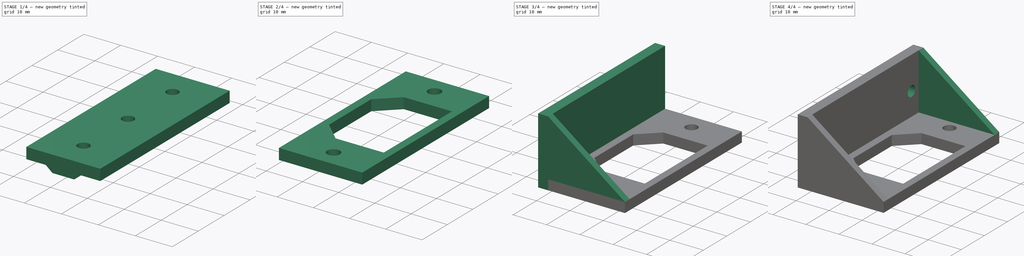
[diagram: build sequence overview — one tinted view per stage of 4, left to right]
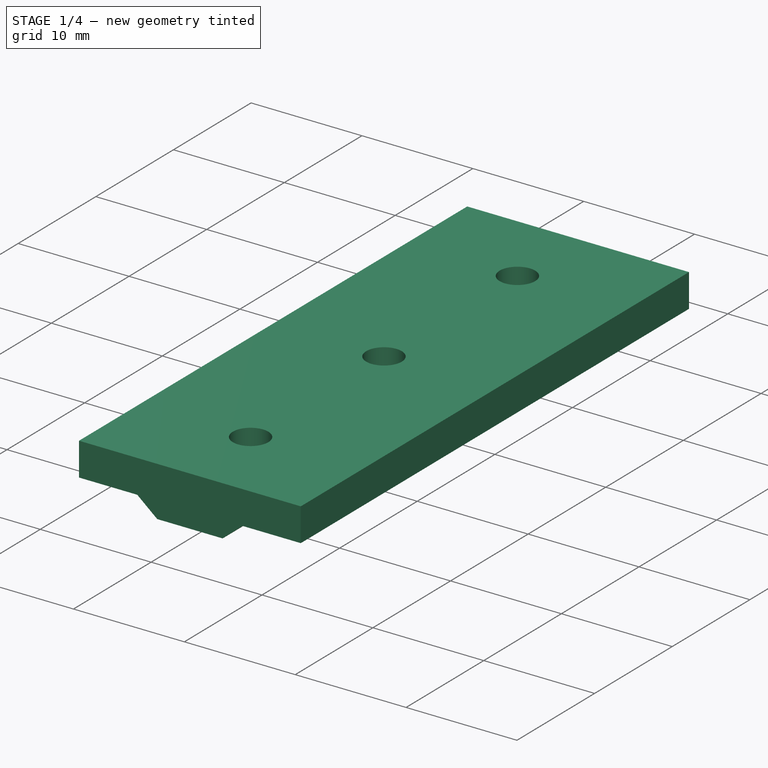
[diagram: stage 1 of 4 — iso view after this stage's code; geometry added in this stage tinted green]
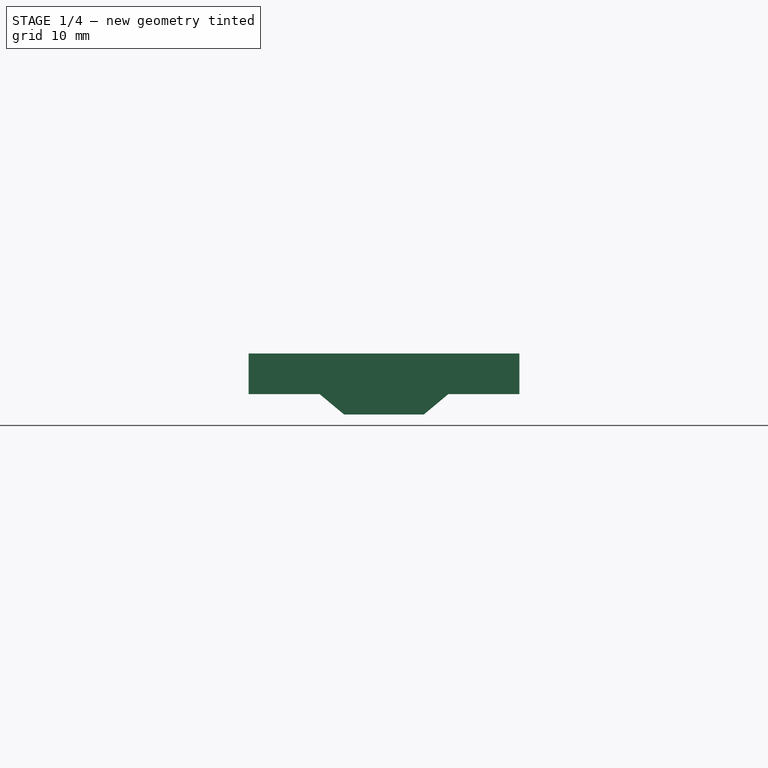
[diagram: stage 1 of 4 — front view after this stage's code; geometry added in this stage tinted green]
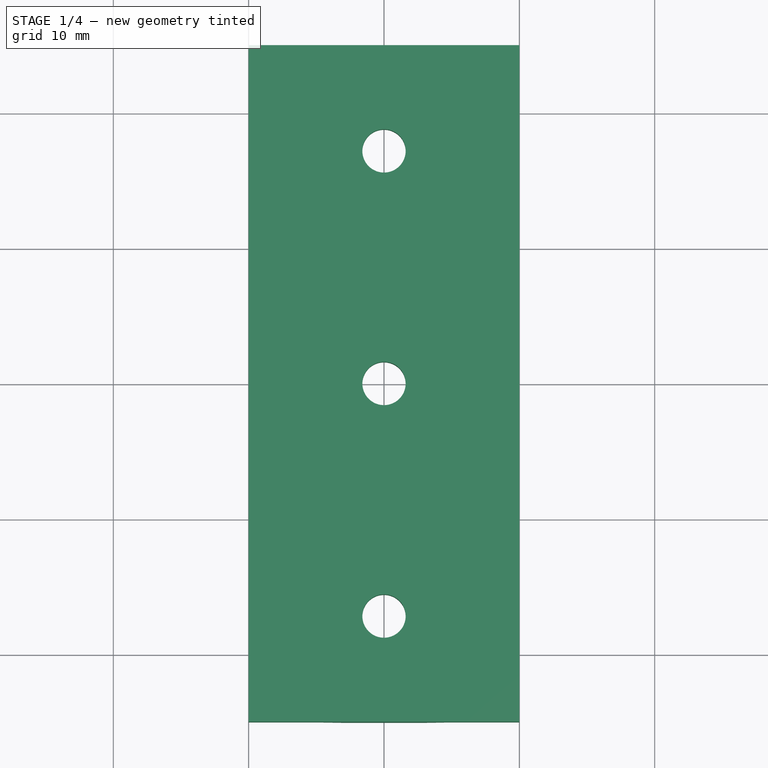
[diagram: stage 1 of 4 — top view after this stage's code; geometry added in this stage tinted green]
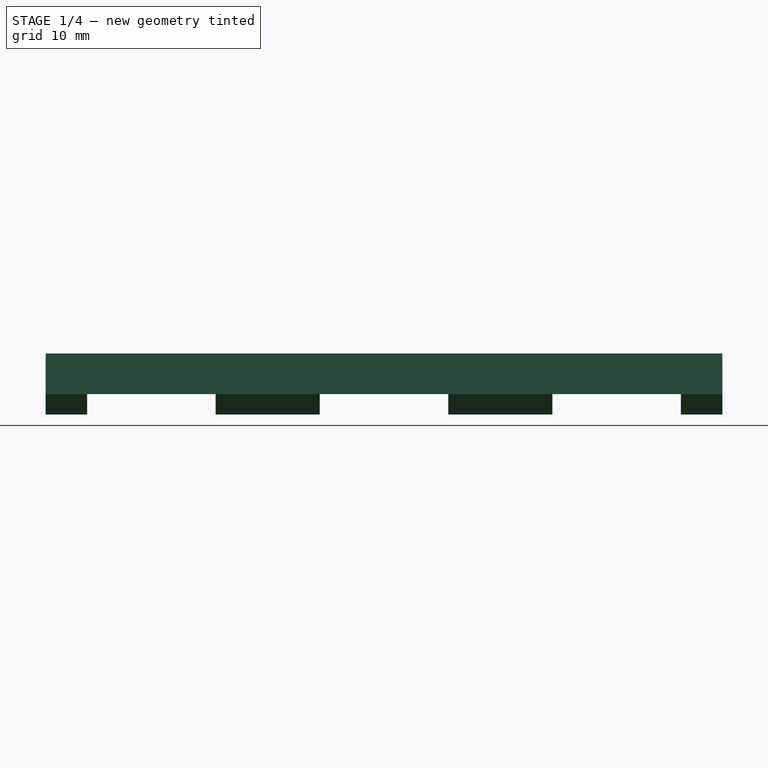
[diagram: stage 1 of 4 — right view after this stage's code; geometry added in this stage tinted green]
FCSTD DOCUMENT  (FreeCAD 0.21R33771 (Git))
Label: suporte-tomada
License: All rights reserved
LicenseURL: https://en.wikipedia.org/wiki/All_rights_reserved
objects: Sketcher::SketchObject×10, PartDesign::Pad×8, PartDesign::Pocket×6, PartDesign::Body×1
note: 39 computed .brp shape members not serialized (recipe doc carries the construction recipe); baked Part::Feature solids carry a one-line shape summary decoded from their .brp

FEATURE [Sketcher::SketchObject] Sketch
  FullyConstrained = true
  MapMode = 5
  Support = -> [XY_Plane]
  sketch-geometry (4):
    g0: LineSegment StartX=-10 StartY=25 StartZ=0 EndX=10 EndY=25 EndZ=0
    g1: LineSegment StartX=10 StartY=25 StartZ=0 EndX=10 EndY=-25 EndZ=0
    g2: LineSegment StartX=10 StartY=-25 StartZ=0 EndX=-10 EndY=-25 EndZ=0
    g3: LineSegment StartX=-10 StartY=-25 StartZ=0 EndX=-10 EndY=25 EndZ=0
  constraints (10):
    c: Coincident(g0,g1)
    c: Coincident(g1,g2)
    c: Coincident(g2,g3)
    c: Coincident(g3,g0)
    c: Horizontal(g2)
    c: Vertical(g1)
    c: Symmetric(g0,g0,g-2)
    c: Symmetric(g2,g0,g-1)
    c: DistanceY(g3,g3) = 50
    c: DistanceX(g0,g0) = 20
FEATURE [PartDesign::Pad] Pad
  Direction = (0,0,1)
  Length = 3
  Length2 = 10
  Profile = -> Sketch
  ReferenceAxis = -> Sketch [N_Axis]
  Type = 0
FEATURE [Sketcher::SketchObject] Sketch001
  FullyConstrained = true
  MapMode = 5
  Placement = pos=(0,-25,0) rot=(1,0,0;1.5708rad)
  Support = -> [Pad]
  sketch-geometry (4):
    g0: LineSegment StartX=4.75 StartY=0 StartZ=0 EndX=-4.75 EndY=0 EndZ=0
    g1: LineSegment StartX=-4.75 StartY=0 StartZ=0 EndX=-2.95 EndY=-1.5 EndZ=0
    g2: LineSegment StartX=-2.95 StartY=-1.5 StartZ=0 EndX=2.95 EndY=-1.5 EndZ=0
    g3: LineSegment StartX=2.95 StartY=-1.5 StartZ=0 EndX=4.75 EndY=0 EndZ=0
  constraints (10):
    c: Coincident(g0,g1)
    c: Coincident(g1,g2)
    c: Coincident(g2,g3)
    c: Coincident(g3,g0)
    c: Symmetric(g0,g0,g-2)
    c: Symmetric(g2,g1,g-2)
    c: DistanceX(g0,g0) = 9.5
    c: DistanceX(g2,g2) = 5.9
    c: DistanceY(g1,g0) = 1.5
    c: PointOnObject(g-1,g0)
FEATURE [PartDesign::Pad] Pad001
  BaseFeature = -> Pad
  Direction = (0,-1,2e-16)
  Length = 10
  Length2 = 10
  Profile = -> Sketch001
  ReferenceAxis = -> Sketch001 [N_Axis]
  Type = 3
  UpToFace = -> Pad [Face1]
FEATURE [Sketcher::SketchObject] Sketch002
  FullyConstrained = true
  MapMode = 5
  Placement = pos=(0,-3e-16,-1.5) rot=(1,0,0;3.14159rad)
  Support = -> [Pad001]
  sketch-geometry (3):
    g0: Circle CenterX=0 CenterY=0 CenterZ=0 NormalX=0 NormalY=0 NormalZ=1 AngleXU=0 Radius=1.6
    g1: Circle CenterX=0 CenterY=17.186 CenterZ=0 NormalX=0 NormalY=0 NormalZ=1 AngleXU=0 Radius=1.6
    g2: Circle CenterX=0 CenterY=-17.186 CenterZ=0 NormalX=0 NormalY=0 NormalZ=1 AngleXU=0 Radius=1.6
  constraints (7):
    c: Coincident(g0,g-1)
    c: Equal(g2,g0)
    c: Equal(g0,g1)
    c: Diameter(g1) = 3.2
    c: Symmetric(g1,g2,g-1)
    c: PointOnObject(g1,g-2)
    c: DistanceY(g2,g1) = 34.372
FEATURE [PartDesign::Pocket] Pocket
  BaseFeature = -> Pad001
  Direction = (0,2e-16,1)
  Length = 5
  Length2 = 5
  Profile = -> Sketch002
  ReferenceAxis = -> Sketch002 [N_Axis]
  Type = 1
FEATURE [Sketcher::SketchObject] Sketch003
  ExternalGeometry = -> [Pocket]
  FullyConstrained = true
  MapMode = 5
  Placement = pos=(0,-3e-16,-1.5) rot=(1,0,0;3.14159rad)
  Support = -> [Pocket]
  sketch-geometry (15):
    g0: Circle CenterX=0 CenterY=17.186 CenterZ=0 NormalX=0 NormalY=0 NormalZ=1 AngleXU=0 Radius=4.75
    g1: Circle CenterX=0 CenterY=0 CenterZ=0 NormalX=0 NormalY=0 NormalZ=1 AngleXU=0 Radius=4.75
    g2: Circle CenterX=0 CenterY=-17.186 CenterZ=0 NormalX=0 NormalY=0 NormalZ=1 AngleXU=0 Radius=4.75
    g3: LineSegment StartX=-4.75 StartY=21.936 StartZ=0 EndX=4.75 EndY=21.936 EndZ=0
    g4: LineSegment StartX=4.75 StartY=21.936 StartZ=0 EndX=4.75 EndY=12.436 EndZ=0
    g5: LineSegment StartX=4.75 StartY=12.436 StartZ=0 EndX=-4.75 EndY=12.436 EndZ=0
    g6: LineSegment StartX=-4.75 StartY=12.436 StartZ=0 EndX=-4.75 EndY=21.936 EndZ=0
    g7: LineSegment StartX=-4.75 StartY=4.75 StartZ=0 EndX=4.75 EndY=4.75 EndZ=0
    g8: LineSegment StartX=4.75 StartY=4.75 StartZ=0 EndX=4.75 EndY=-4.75 EndZ=0
    g9: LineSegment StartX=4.75 StartY=-4.75 StartZ=0 EndX=-4.75 EndY=-4.75 EndZ=0
    g10: LineSegment StartX=-4.75 StartY=-4.75 StartZ=0 EndX=-4.75 EndY=4.75 EndZ=0
    g11: LineSegment StartX=-4.75 StartY=-12.436 StartZ=0 EndX=4.75 EndY=-12.436 EndZ=0
    g12: LineSegment StartX=4.75 StartY=-12.436 StartZ=0 EndX=4.75 EndY=-21.936 EndZ=0
    g13: LineSegment StartX=4.75 StartY=-21.936 StartZ=0 EndX=-4.75 EndY=-21.936 EndZ=0
    g14: LineSegment StartX=-4.75 StartY=-21.936 StartZ=0 EndX=-4.75 EndY=-12.436 EndZ=0
  constraints (42):
    c: Coincident(g0,g-5)
    c: Coincident(g1,g-1)
    c: Coincident(g2,g-6)
    c: Tangent(g-3,g2)
    c: Tangent(g1,g-3)
    c: Tangent(g-3,g0)
    c: Coincident(g3,g4)
    c: Coincident(g4,g5)
    c: Coincident(g5,g6)
    c: Coincident(g6,g3)
    c: Horizontal(g3)
    c: Horizontal(g5)
    c: Vertical(g4)
    c: Vertical(g6)
    c: Coincident(g7,g8)
    c: Coincident(g8,g9)
    c: Coincident(g9,g10)
    c: Coincident(g10,g7)
    c: Horizontal(g7)
    c: Horizontal(g9)
    c: Vertical(g8)
    c: Vertical(g10)
    c: Coincident(g11,g12)
    c: Coincident(g12,g13)
    c: Coincident(g13,g14)
    c: Coincident(g14,g11)
    c: Horizontal(g11)
    c: Horizontal(g13)
    c: Vertical(g12)
    c: Vertical(g14)
    c: Tangent(g12,g2)
    c: Tangent(g2,g11)
    c: Tangent(g2,g14)
    c: Tangent(g13,g2)
    c: Tangent(g9,g1)
    c: Tangent(g1,g8)
    c: Tangent(g7,g1)
    c: Tangent(g1,g10)
    c: Tangent(g5,g0)
    c: Tangent(g0,g6)
    c: Tangent(g3,g0)
    c: Tangent(g0,g4)
FEATURE [PartDesign::Pocket] Pocket001
  BaseFeature = -> Pocket
  Direction = (0,2e-16,1)
  Length = 0
  Length2 = 5
  Profile = -> Sketch003
  ReferenceAxis = -> Sketch003 [N_Axis]
  Type = 3
  UpToFace = -> Pocket [Face4]
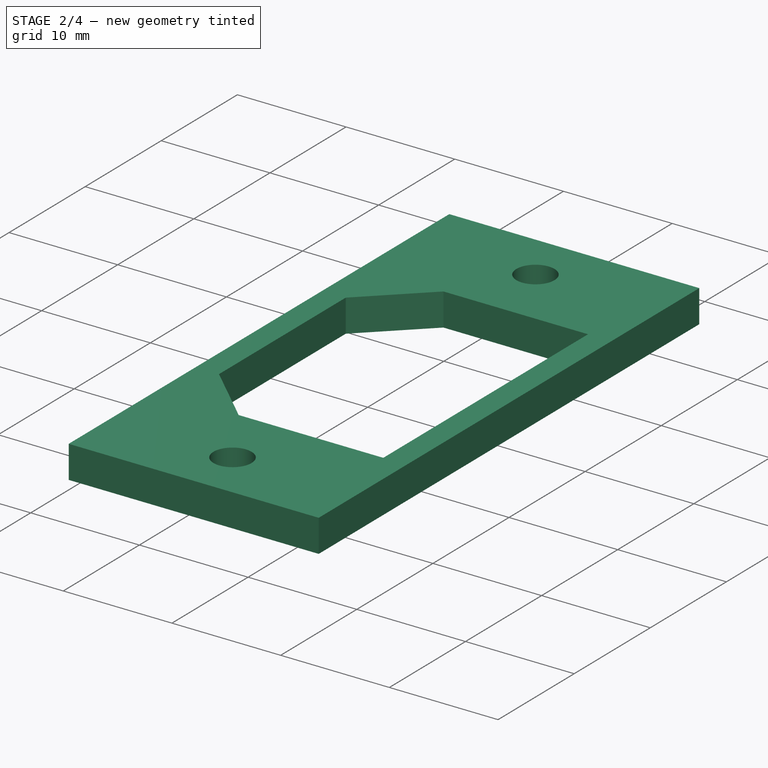
[diagram: stage 2 of 4 — iso view after this stage's code; geometry added in this stage tinted green]
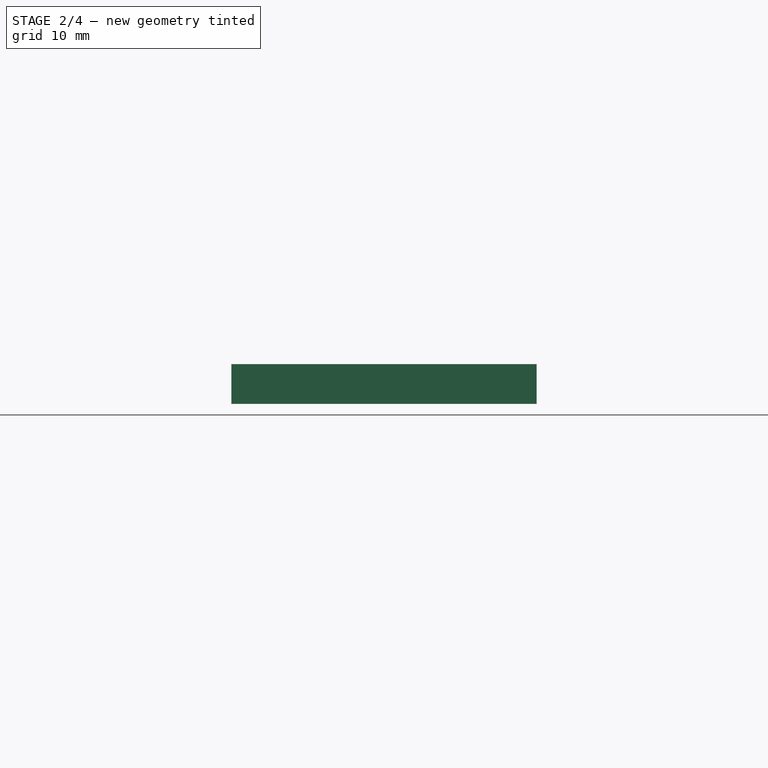
[diagram: stage 2 of 4 — front view after this stage's code; geometry added in this stage tinted green]
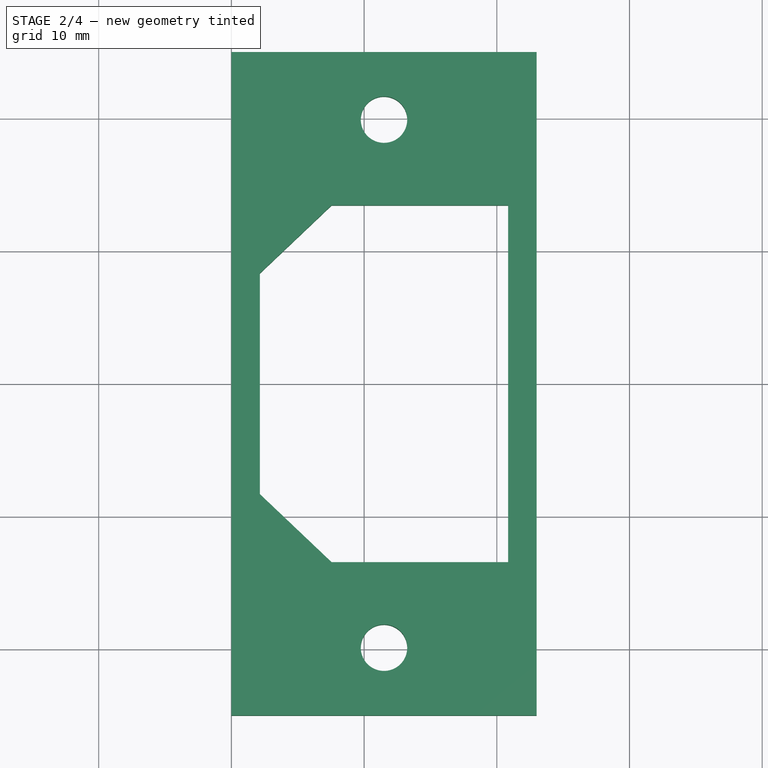
[diagram: stage 2 of 4 — top view after this stage's code; geometry added in this stage tinted green]
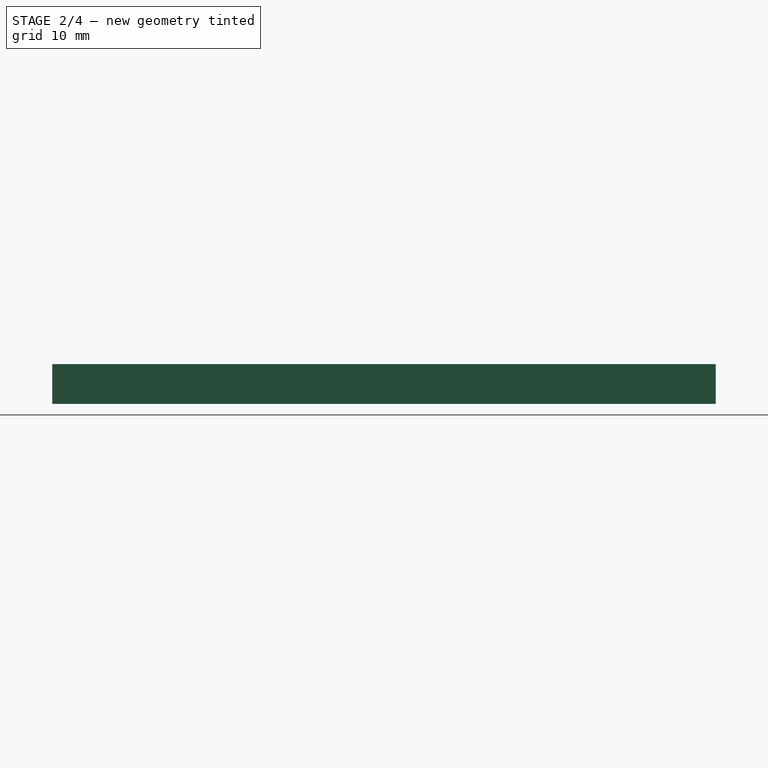
[diagram: stage 2 of 4 — right view after this stage's code; geometry added in this stage tinted green]
FEATURE [PartDesign::Pad] Pad002
  BaseFeature = -> Pocket001
  Direction = (1,0,0)
  Length = 23
  Length2 = 10
  Profile = -> Pocket001 [Face3]
  Type = 0
FEATURE [Sketcher::SketchObject] Sketch004
  ExternalGeometry = -> [Pad002]
  FullyConstrained = true
  MapMode = 5
  Placement = pos=(0,0,0) rot=(1,0,0;3.14159rad)
  Support = -> [Pad002]
  sketch-geometry (13):
    g0: LineSegment StartX=21.5 StartY=25 StartZ=0 EndX=21.5 EndY=-25 EndZ=0
    g1: Circle CenterX=21.5 CenterY=19.9 CenterZ=0 NormalX=0 NormalY=0 NormalZ=1 AngleXU=0 Radius=1.75
    g2: Circle CenterX=21.5 CenterY=-19.9 CenterZ=0 NormalX=0 NormalY=0 NormalZ=1 AngleXU=0 Radius=1.75
    g3: LineSegment StartX=30.85 StartY=13.45 StartZ=0 EndX=30.85 EndY=-13.45 EndZ=0
    g4: LineSegment StartX=30.85 StartY=-13.45 StartZ=0 EndX=17.55 EndY=-13.45 EndZ=0
    g5: LineSegment StartX=17.55 StartY=-13.45 StartZ=0 EndX=12.15 EndY=-8.325 EndZ=0
    g6: LineSegment StartX=12.15 StartY=-8.325 StartZ=0 EndX=12.15 EndY=8.325 EndZ=0
    g7: LineSegment StartX=12.15 StartY=8.325 StartZ=0 EndX=17.55 EndY=13.45 EndZ=0
    g8: LineSegment StartX=17.55 StartY=13.45 StartZ=0 EndX=30.85 EndY=13.45 EndZ=0
    g9: LineSegment StartX=30.85 StartY=-13.45 StartZ=0 EndX=12.15 EndY=-13.45 EndZ=0
    g10: LineSegment StartX=12.15 StartY=-13.45 StartZ=0 EndX=12.15 EndY=13.45 EndZ=0
    g11: LineSegment StartX=12.15 StartY=13.45 StartZ=0 EndX=30.85 EndY=13.45 EndZ=0
    g12: LineSegment StartX=30.85 StartY=13.45 StartZ=0 EndX=30.85 EndY=-13.45 EndZ=0
  constraints (34):
    c: Symmetric(g-3,g-3,g0)
    c: PointOnObject(g0,g-3)
    c: PointOnObject(g0,g-4)
    c: Symmetric(g2,g1,g-1)
    c: Equal(g1,g2)
    c: Diameter(g1) = 3.5
    c: DistanceY(g2,g1) = 39.8
    c: PointOnObject(g1,g0)
    c: Coincident(g3,g4)
    c: Horizontal(g4)
    c: Coincident(g4,g5)
    c: Coincident(g5,g6)
    c: Coincident(g6,g7)
    c: Coincident(g7,g8)
    c: Coincident(g8,g3)
    c: Horizontal(g8)
    c: Symmetric(g5,g6,g-1)
    c: Symmetric(g3,g3,g-1)
    c: Coincident(g9,g10)
    c: Coincident(g10,g11)
    c: Coincident(g11,g12)
    c: Coincident(g12,g9)
    c: Horizontal(g9)
    c: Horizontal(g11)
    c: Vertical(g10)
    c: Vertical(g12)
    c: Coincident(g9,g3)
    c: PointOnObject(g6,g10)
    c: Symmetric(g10,g3,g0)
    c: DistanceY(g3,g3) = 26.9
    c: DistanceX(g9,g3) = 18.7
    c: DistanceX(g4,g4) = 13.3
    c: Equal(g4,g8)
    c: DistanceY(g5,g6) = 16.65
FEATURE [PartDesign::Pocket] Pocket002
  BaseFeature = -> Pad002
  Direction = (0,0,1)
  Length = 5
  Length2 = 5
  Profile = -> Sketch004
  ReferenceAxis = -> Sketch004 [N_Axis]
  Type = 1
FEATURE [PartDesign::Pocket] Pocket003
  BaseFeature = -> Pocket002
  Direction = (0,1,0)
  Length = 5
  Length2 = 5
  Profile = -> Pocket002 [Face8,Face28]
  Type = 1
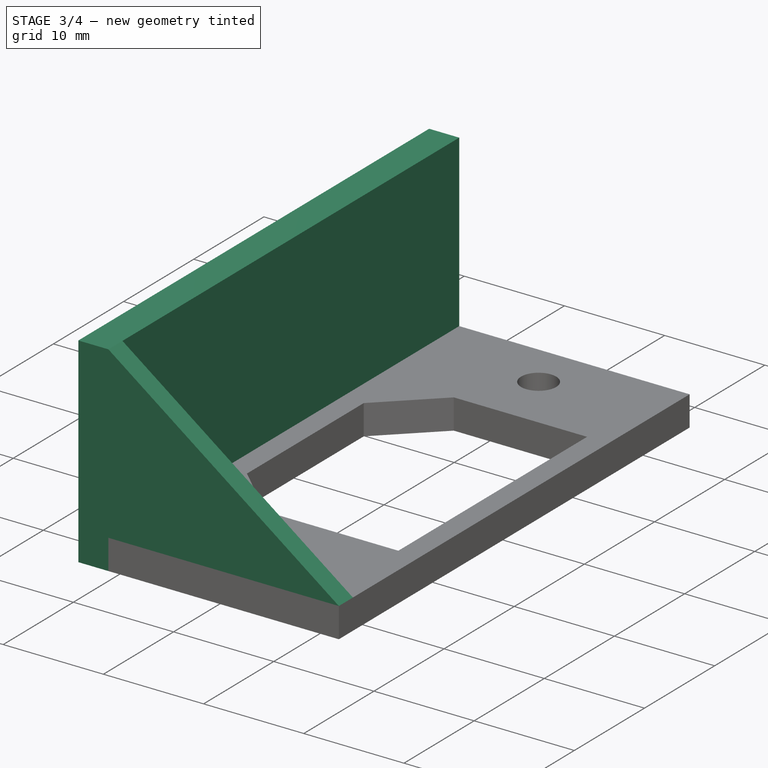
[diagram: stage 3 of 4 — iso view after this stage's code; geometry added in this stage tinted green]
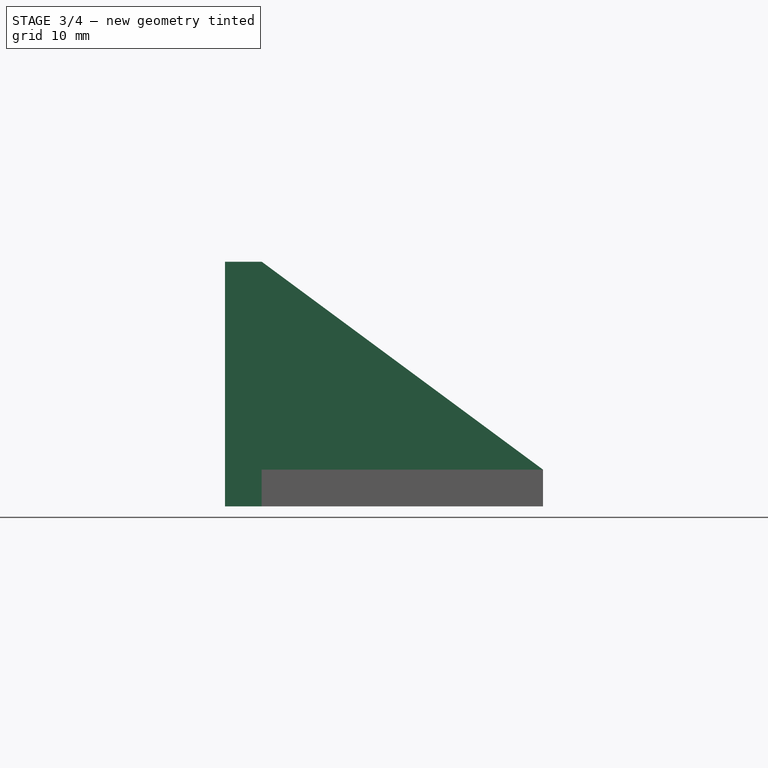
[diagram: stage 3 of 4 — front view after this stage's code; geometry added in this stage tinted green]
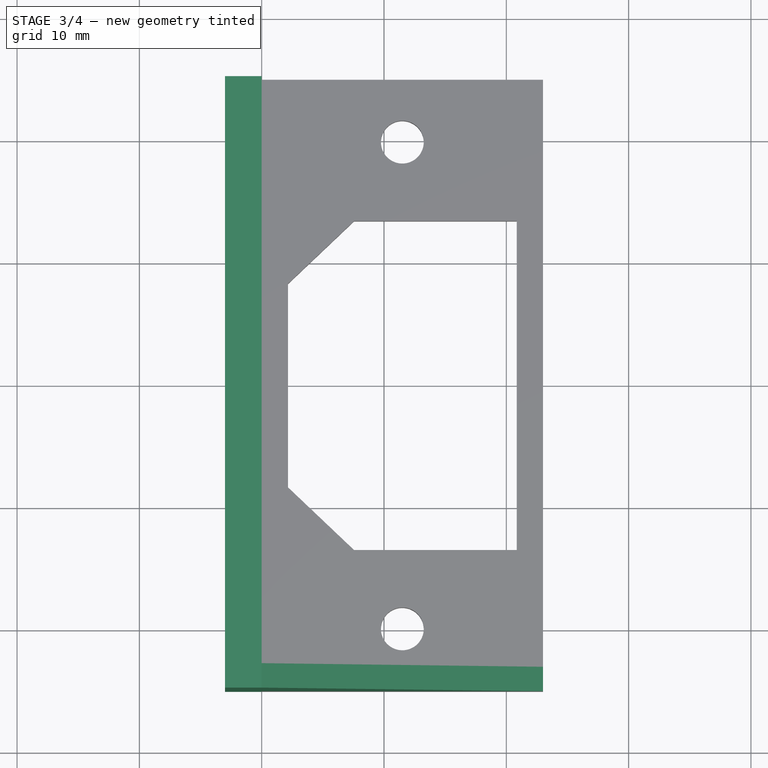
[diagram: stage 3 of 4 — top view after this stage's code; geometry added in this stage tinted green]
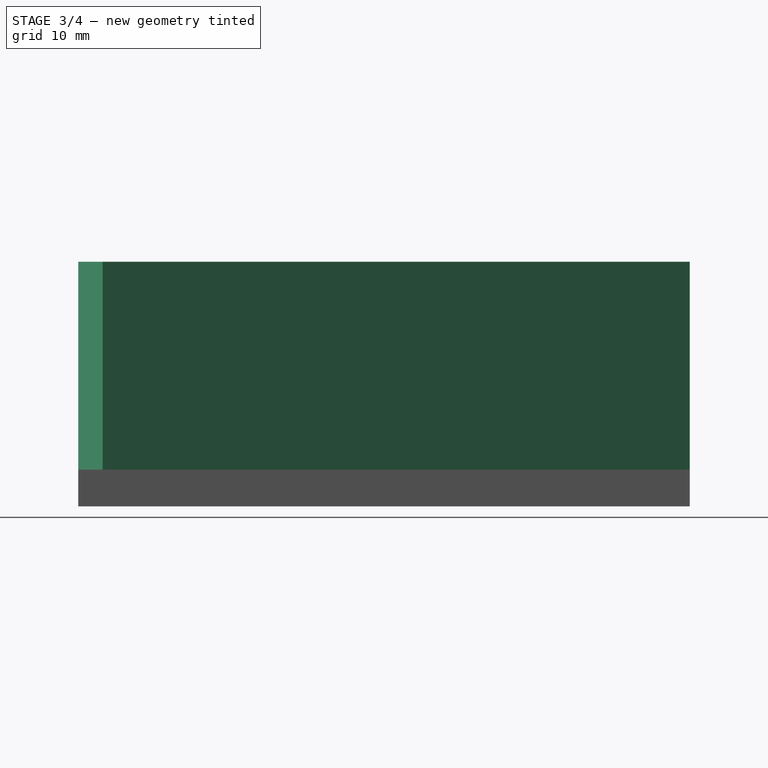
[diagram: stage 3 of 4 — right view after this stage's code; geometry added in this stage tinted green]
FEATURE [PartDesign::Pad] Pad003
  BaseFeature = -> Pocket003
  Direction = (-1,0,0)
  Length = 3
  Length2 = 10
  Profile = -> Pocket003 [Face4]
  Type = 0
FEATURE [PartDesign::Pad] Pad004
  BaseFeature = -> Pad003
  Direction = (0,0,1)
  Length = 17
  Length2 = 10
  Profile = -> Pad003 [Face16]
  Type = 0
FEATURE [Sketcher::SketchObject] Sketch005
  ExternalGeometry = -> [Pad004]
  FullyConstrained = true
  MapMode = 5
  Placement = pos=(0,-25,0) rot=(1,0,0;1.5708rad)
  Support = -> [Pad004]
  sketch-geometry (3):
    g0: LineSegment StartX=10 StartY=3 StartZ=0 EndX=33 EndY=3 EndZ=0
    g1: LineSegment StartX=33 StartY=3 StartZ=0 EndX=10 EndY=20 EndZ=0
    g2: LineSegment StartX=10 StartY=20 StartZ=0 EndX=10 EndY=3 EndZ=0
  constraints (6):
    c: Coincident(g0,g1)
    c: Coincident(g1,g2)
    c: Coincident(g2,g0)
    c: Coincident(g2,g-4)
    c: Coincident(g1,g-3)
    c: Coincident(g0,g-4)
FEATURE [PartDesign::Pad] Pad005
  BaseFeature = -> Pad004
  Direction = (0,-1,2e-16)
  Length = 2
  Length2 = 10
  Profile = -> Sketch005
  ReferenceAxis = -> Sketch005 [N_Axis]
  Reversed = true
  Type = 0
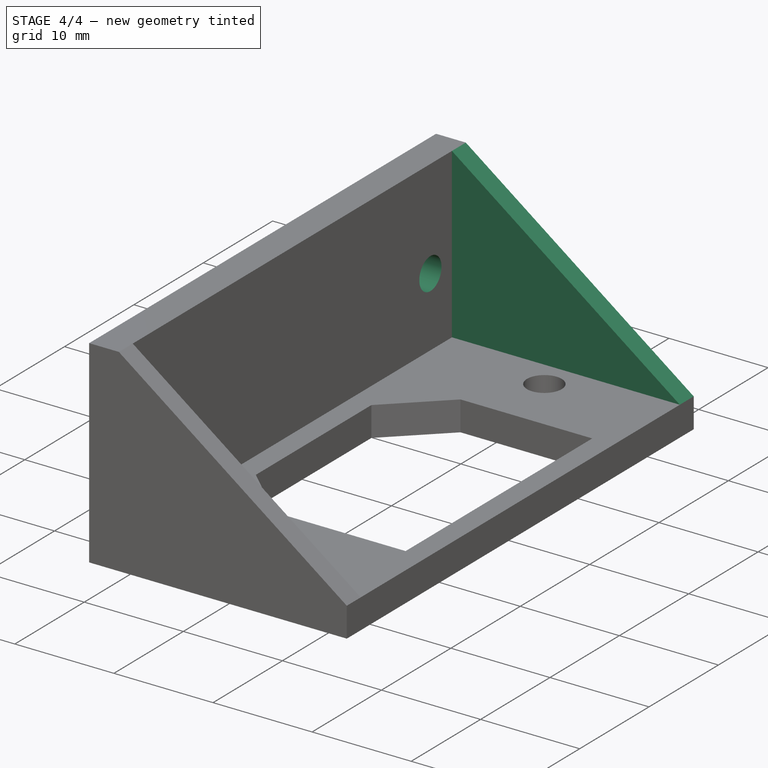
[diagram: stage 4 of 4 — iso view after this stage's code; geometry added in this stage tinted green]
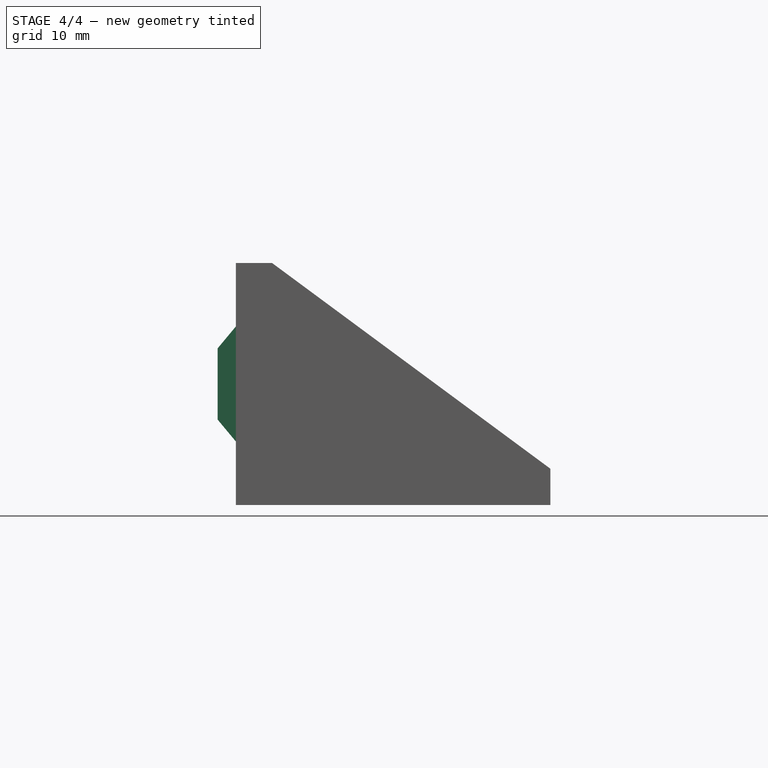
[diagram: stage 4 of 4 — front view after this stage's code; geometry added in this stage tinted green]
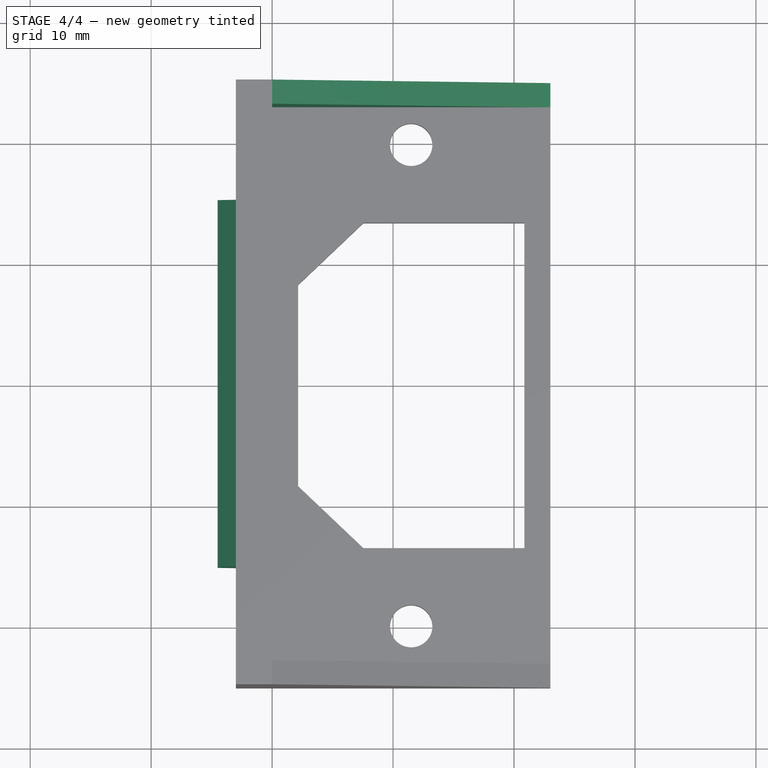
[diagram: stage 4 of 4 — top view after this stage's code; geometry added in this stage tinted green]
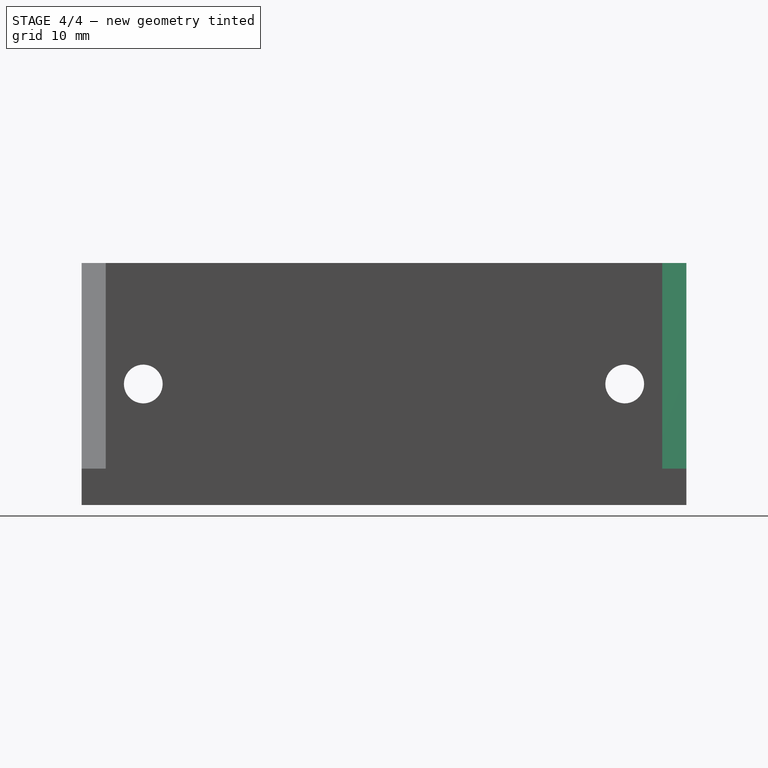
[diagram: stage 4 of 4 — right view after this stage's code; geometry added in this stage tinted green]
FEATURE [Sketcher::SketchObject] Sketch006
  ExternalGeometry = -> [Pad005]
  FullyConstrained = true
  MapMode = 5
  Placement = pos=(0,25,0) rot=(0,0.707107,0.707107;3.14159rad)
  Support = -> [Pad005]
  sketch-geometry (3):
    g0: LineSegment StartX=-10 StartY=3 StartZ=0 EndX=-33 EndY=3 EndZ=0
    g1: LineSegment StartX=-33 StartY=3 StartZ=0 EndX=-10 EndY=20 EndZ=0
    g2: LineSegment StartX=-10 StartY=20 StartZ=0 EndX=-10 EndY=3 EndZ=0
  constraints (6):
    c: Coincident(g0,g1)
    c: Coincident(g1,g2)
    c: Coincident(g2,g0)
    c: Coincident(g0,g-4)
    c: Coincident(g1,g-4)
    c: Coincident(g0,g-3)
FEATURE [PartDesign::Pad] Pad006
  BaseFeature = -> Pad005
  Direction = (0,1,-2e-16)
  Length = 2
  Length2 = 10
  Profile = -> Sketch006
  ReferenceAxis = -> Sketch006 [N_Axis]
  Reversed = true
  Type = 0
FEATURE [Sketcher::SketchObject] Sketch007
  ExternalGeometry = -> [Pad006]
  FullyConstrained = true
  MapMode = 5
  Placement = pos=(0,-25,0) rot=(1,0,0;1.5708rad)
  Support = -> [Pad006]
  sketch-geometry (5):
    g0: LineSegment StartX=5.5 StartY=10 StartZ=0 EndX=7 EndY=10 EndZ=0
    g1: LineSegment StartX=7 StartY=14.75 StartZ=0 EndX=7 EndY=5.25 EndZ=0
    g2: LineSegment StartX=7 StartY=5.25 StartZ=0 EndX=5.5 EndY=7.05 EndZ=0
    g3: LineSegment StartX=5.5 StartY=7.05 StartZ=0 EndX=5.5 EndY=12.95 EndZ=0
    g4: LineSegment StartX=5.5 StartY=12.95 StartZ=0 EndX=7 EndY=14.75 EndZ=0
  constraints (13):
    c: Symmetric(g-3,g-4,g0)
    c: Vertical(g0,g-4)
    c: Coincident(g1,g2)
    c: Coincident(g2,g3)
    c: Coincident(g3,g4)
    c: Coincident(g4,g1)
    c: Symmetric(g1,g1,g0)
    c: Symmetric(g2,g3,g0)
    c: DistanceY(g1,g1) = 9.5
    c: DistanceY(g3,g3) = 5.9
    c: PointOnObject(g0,g3)
    c: PointOnObject(g1,g-5)
    c: DistanceX(g3,g1) = 1.5
FEATURE [PartDesign::Pad] Pad007
  BaseFeature = -> Pad006
  Direction = (0,-1,2e-16)
  Length = 10
  Length2 = 10
  Profile = -> Sketch007
  ReferenceAxis = -> Sketch007 [N_Axis]
  Type = 3
  UpToFace = -> Pad006 [Face17]
FEATURE [Sketcher::SketchObject] Sketch008
  ExternalGeometry = -> [Pad007]
  FullyConstrained = true
  MapMode = 5
  Placement = pos=(5.5,0,-8e-16) rot=(0.57735,-0.57735,-0.57735;2.0944rad)
  Support = -> [Pad007]
  sketch-geometry (4):
    g0: Circle CenterX=-19.9 CenterY=10 CenterZ=0 NormalX=0 NormalY=0 NormalZ=1 AngleXU=0 Radius=1.6
    g1: Circle CenterX=19.9 CenterY=10 CenterZ=0 NormalX=0 NormalY=0 NormalZ=1 AngleXU=0 Radius=1.6
    g2: Circle CenterX=-19.9 CenterY=10 CenterZ=0 NormalX=0 NormalY=0 NormalZ=1 AngleXU=0 Radius=4.75
    g3: Circle CenterX=19.9 CenterY=10 CenterZ=0 NormalX=0 NormalY=0 NormalZ=1 AngleXU=0 Radius=4.75
  constraints (9):
    c: Coincident(g2,g0)
    c: Tangent(g2,g-4)
    c: Tangent(g3,g-4)
    c: Coincident(g1,g3)
    c: Tangent(g3,g-3)
    c: DistanceX(g0,g1) = 39.8
    c: Equal(g0,g1)
    c: Symmetric(g1,g0,g-2)
    c: Diameter(g0) = 3.2
FEATURE [PartDesign::Pocket] Pocket004
  BaseFeature = -> Pad007
  Direction = (1,-1e-16,-1e-16)
  Length = 5
  Length2 = 5
  Profile = -> Sketch008
  ReferenceAxis = -> Sketch008 [N_Axis]
  Type = 1
FEATURE [Sketcher::SketchObject] Sketch009
  ExternalGeometry = -> [Pocket004]
  FullyConstrained = true
  MapMode = 5
  Placement = pos=(5.5,0,-8e-16) rot=(0.57735,-0.57735,-0.57735;2.0944rad)
  Support = -> [Pocket004]
  sketch-geometry (10):
    g0: Circle CenterX=-19.9 CenterY=10 CenterZ=0 NormalX=0 NormalY=0 NormalZ=1 AngleXU=0 Radius=4.75
    g1: Circle CenterX=19.9 CenterY=10 CenterZ=0 NormalX=0 NormalY=0 NormalZ=1 AngleXU=0 Radius=4.75
    g2: LineSegment StartX=-15.15 StartY=14.75 StartZ=0 EndX=-25 EndY=14.75 EndZ=0
    g3: LineSegment StartX=-25 StartY=14.75 StartZ=0 EndX=-25 EndY=5.25 EndZ=0
    g4: LineSegment StartX=-25 StartY=5.25 StartZ=0 EndX=-15.15 EndY=5.25 EndZ=0
    g5: LineSegment StartX=-15.15 StartY=5.25 StartZ=0 EndX=-15.15 EndY=14.75 EndZ=0
    g6: LineSegment StartX=15.15 StartY=14.75 StartZ=0 EndX=25 EndY=14.75 EndZ=0
    g7: LineSegment StartX=25 StartY=14.75 StartZ=0 EndX=25 EndY=5.25 EndZ=0
    g8: LineSegment StartX=25 StartY=5.25 StartZ=0 EndX=15.15 EndY=5.25 EndZ=0
    g9: LineSegment StartX=15.15 StartY=5.25 StartZ=0 EndX=15.15 EndY=14.75 EndZ=0
  constraints (28):
    c: Coincident(g0,g-3)
    c: Coincident(g1,g-4)
    c: Tangent(g1,g-5)
    c: Tangent(g0,g-5)
    c: Coincident(g2,g3)
    c: Coincident(g3,g4)
    c: Coincident(g4,g5)
    c: Coincident(g5,g2)
    c: Horizontal(g2)
    c: Horizontal(g4)
    c: Vertical(g3)
    c: Vertical(g5)
    c: Coincident(g6,g7)
    c: Coincident(g7,g8)
    c: Coincident(g8,g9)
    c: Coincident(g9,g6)
    c: Horizontal(g6)
    c: Horizontal(g8)
    c: Vertical(g7)
    c: Vertical(g9)
    c: Tangent(g1,g9)
    c: Tangent(g5,g0)
    c: Tangent(g0,g2)
    c: Tangent(g4,g0)
    c: Tangent(g8,g1)
    c: Tangent(g1,g6)
    c: PointOnObject(g-5,g7)
    c: PointOnObject(g-5,g3)
FEATURE [PartDesign::Pocket] Pocket005
  BaseFeature = -> Pocket004
  Direction = (1,-1e-16,-1e-16)
  Length = 0
  Length2 = 5
  Profile = -> Sketch009
  ReferenceAxis = -> Sketch009 [N_Axis]
  Type = 3
  UpToFace = -> Pocket004 [Face27]
FEATURE [PartDesign::Body] Body
  Group = -> [Sketch,Pad,Sketch001,Pad001,Sketch002,Pocket,Sketch003,Pocket001,Pad002,Sketch004,Pocket002,Pocket003,Pad003,Pad004,Sketch005,Pad005,Sketch006,Pad006,Sketch007,Pad007,Sketch008,Pocket004,Sketch009,Pocket005]
  Origin = -> Origin
  Tip = -> Pocket005
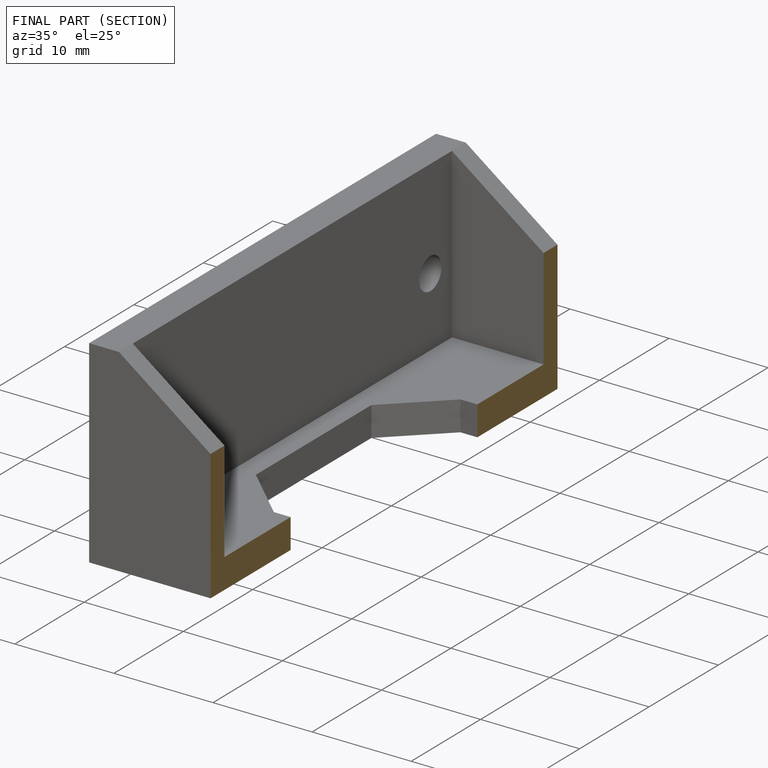
[diagram: finished part — half-section view (interior)]
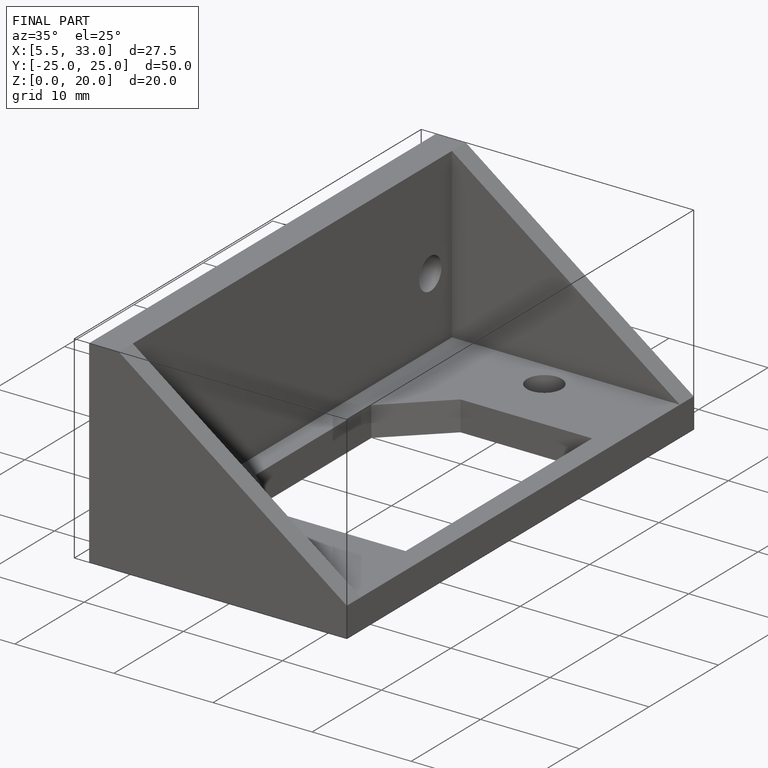
[diagram: finished part — iso view with bounding-box wireframe]
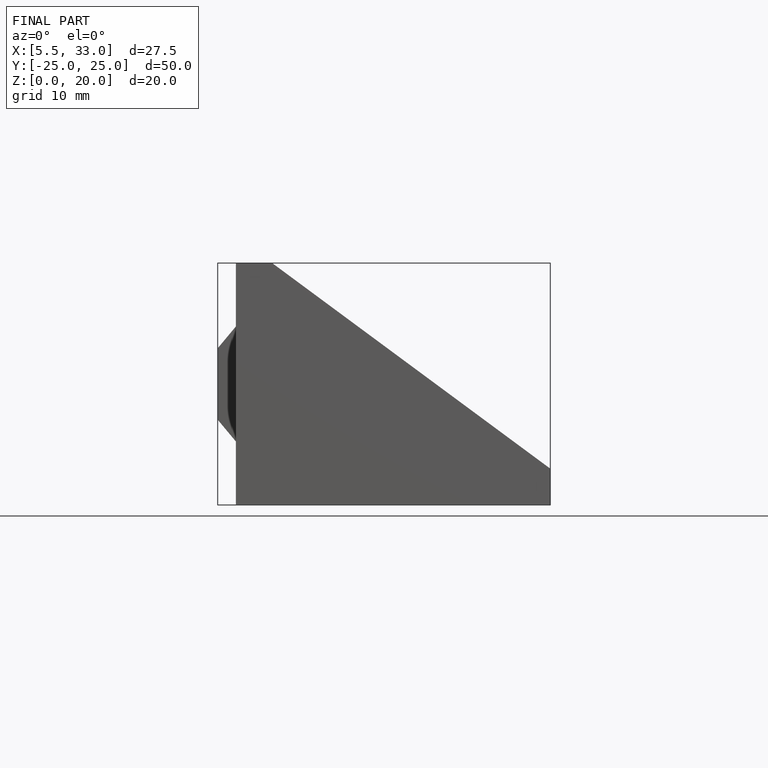
[diagram: finished part — front view with bounding-box wireframe]
